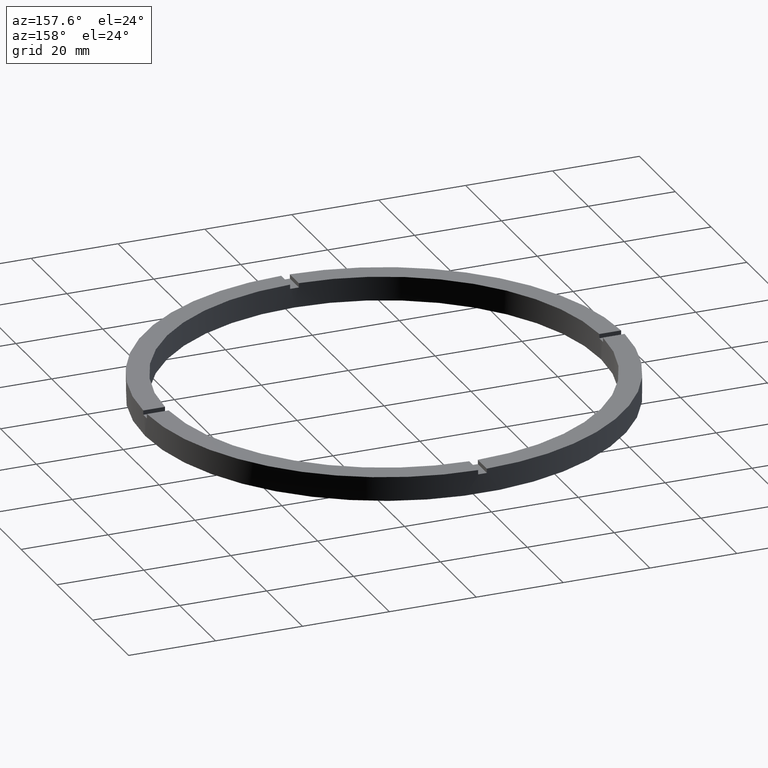
[diagram: clean part render]
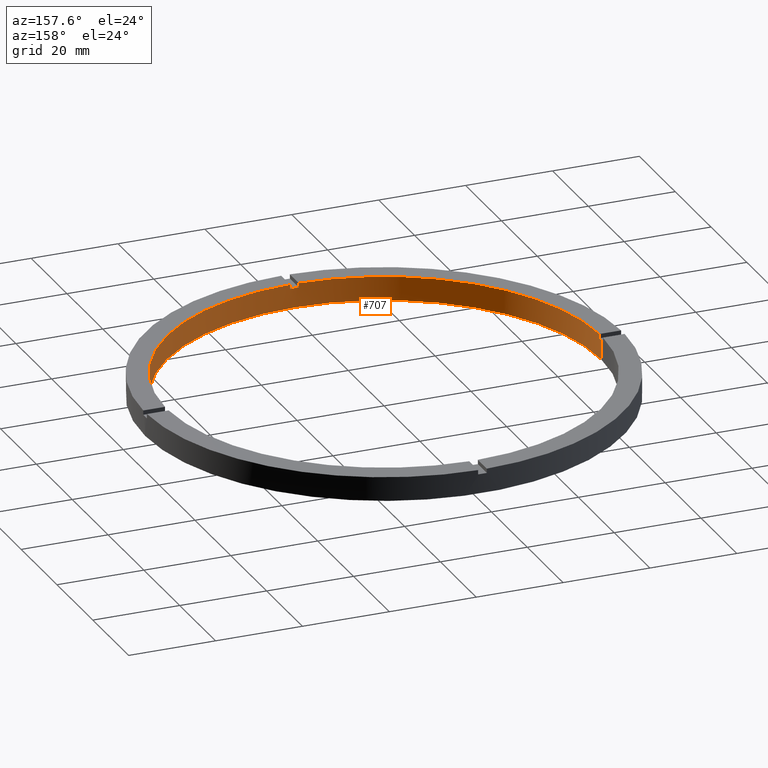
[diagram: same view with one face highlighted and labeled with its STEP entity id]
A machine part, auxiliary view. The second image highlights one B-rep face of the part: STEP entity #707.
In plain terms, the highlighted cylindrical surface (partial cylindrical patch) has radius 50 mm, axis along (-0, -0, -1).
Its self-contained STEP definition (entity closure, byte-faithful):
#19 = CARTESIAN_POINT ( 'NONE',  ( -1.000000000000156097, -49.98999899979995121, 5.500000000000000000 ) ) ;
#20 = CARTESIAN_POINT ( 'NONE',  ( -50.00000000000000000, 0.000000000000000000, 4.500000000000000000 ) ) ;
#43 = CARTESIAN_POINT ( 'NONE',  ( -49.98999899979995121, -1.000000000000031974, 5.500000000000000000 ) ) ;
#48 = EDGE_CURVE ( 'NONE', #632, #404, #199, .T. ) ;
#69 = VERTEX_POINT ( 'NONE', #373 ) ;
#74 = DIRECTION ( 'NONE',  ( 0.000000000000000000, 0.000000000000000000, 1.000000000000000000 ) ) ;
#87 = EDGE_CURVE ( 'NONE', #451, #562, #460, .T. ) ;
#89 = AXIS2_PLACEMENT_3D ( 'NONE', #620, #691, #570 ) ;
#97 = DIRECTION ( 'NONE',  ( 1.000000000000000000, 0.000000000000000000, 0.000000000000000000 ) ) ;
#121 = ORIENTED_EDGE ( 'NONE', *, *, #87, .T. ) ;
#122 = ORIENTED_EDGE ( 'NONE', *, *, #389, .F. ) ;
#123 = VERTEX_POINT ( 'NONE', #780 ) ;
#128 = ORIENTED_EDGE ( 'NONE', *, *, #212, .T. ) ;
#131 = CARTESIAN_POINT ( 'NONE',  ( 0.000000000000000000, 0.000000000000000000, 5.500000000000000000 ) ) ;
#133 = AXIS2_PLACEMENT_3D ( 'NONE', #506, #281, #333 ) ;
#136 = CARTESIAN_POINT ( 'NONE',  ( 49.98999899979995121, -1.000000000000154543, 4.500000000000000000 ) ) ;
#140 = ORIENTED_EDGE ( 'NONE', *, *, #482, .T. ) ;
#152 = VERTEX_POINT ( 'NONE', #279 ) ;
#155 = DIRECTION ( 'NONE',  ( -0.000000000000000000, -0.000000000000000000, -1.000000000000000000 ) ) ;
#160 = CARTESIAN_POINT ( 'NONE',  ( 0.9999999999998439026, -49.98999899979995831, 4.500000000000000000 ) ) ;
#162 = DIRECTION ( 'NONE',  ( 1.000000000000000000, 0.000000000000000000, 0.000000000000000000 ) ) ;
#165 = EDGE_CURVE ( 'NONE', #451, #477, #480, .T. ) ;
#183 = DIRECTION ( 'NONE',  ( -0.000000000000000000, -0.000000000000000000, -1.000000000000000000 ) ) ;
#195 = VERTEX_POINT ( 'NONE', #136 ) ;
#199 = LINE ( 'NONE', #43, #472 ) ;
#207 = ORIENTED_EDGE ( 'NONE', *, *, #592, .F. ) ;
#212 = EDGE_CURVE ( 'NONE', #735, #69, #453, .T. ) ;
#233 = EDGE_CURVE ( 'NONE', #195, #664, #240, .T. ) ;
#240 = CIRCLE ( 'NONE', #693, 50.00000000000000000 ) ;
#248 = CARTESIAN_POINT ( 'NONE',  ( -1.000000000000156097, -49.98999899979995121, 5.500000000000000000 ) ) ;
#249 = CIRCLE ( 'NONE', #619, 50.00000000000000000 ) ;
#253 = CIRCLE ( 'NONE', #656, 50.00000000000000000 ) ;
#255 = VECTOR ( 'NONE', #270, 1000.000000000000000 ) ;
#258 = LINE ( 'NONE', #355, #502 ) ;
#261 = FACE_OUTER_BOUND ( 'NONE', #558, .T. ) ;
#263 = CARTESIAN_POINT ( 'NONE',  ( 0.9999999999998439026, -49.98999899979995831, 5.500000000000000000 ) ) ;
#269 = DIRECTION ( 'NONE',  ( 1.000000000000000000, 0.000000000000000000, 0.000000000000000000 ) ) ;
#270 = DIRECTION ( 'NONE',  ( 0.000000000000000000, 0.000000000000000000, 1.000000000000000000 ) ) ;
#275 = CARTESIAN_POINT ( 'NONE',  ( 0.000000000000000000, 0.000000000000000000, 5.500000000000000000 ) ) ;
#278 = DIRECTION ( 'NONE',  ( -0.000000000000000000, -0.000000000000000000, -1.000000000000000000 ) ) ;
#279 = CARTESIAN_POINT ( 'NONE',  ( 50.00000000000000000, 6.123233995736766085E-15, 0.000000000000000000 ) ) ;
#281 = DIRECTION ( 'NONE',  ( 0.000000000000000000, 0.000000000000000000, 1.000000000000000000 ) ) ;
#282 = CARTESIAN_POINT ( 'NONE',  ( 50.00000000000000000, 6.123233995736766085E-15, 4.500000000000000000 ) ) ;
#299 = DIRECTION ( 'NONE',  ( 0.000000000000000000, 0.000000000000000000, 1.000000000000000000 ) ) ;
#306 = CARTESIAN_POINT ( 'NONE',  ( -1.000000000000156097, -49.98999899979995121, 4.500000000000000000 ) ) ;
#333 = DIRECTION ( 'NONE',  ( 1.000000000000000000, 0.000000000000000000, 0.000000000000000000 ) ) ;
#349 = CARTESIAN_POINT ( 'NONE',  ( -49.98999899979995121, -1.000000000000031974, 5.500000000000000000 ) ) ;
#352 = AXIS2_PLACEMENT_3D ( 'NONE', #783, #299, #162 ) ;
#355 = CARTESIAN_POINT ( 'NONE',  ( -50.00000000000000000, 0.000000000000000000, 5.500000000000000000 ) ) ;
#368 = CARTESIAN_POINT ( 'NONE',  ( -49.98999899979995121, -1.000000000000031974, 4.500000000000000000 ) ) ;
#373 = CARTESIAN_POINT ( 'NONE',  ( 49.98999899979995121, -1.000000000000154543, 5.500000000000000000 ) ) ;
#382 = ORIENTED_EDGE ( 'NONE', *, *, #165, .F. ) ;
#389 = EDGE_CURVE ( 'NONE', #195, #69, #760, .T. ) ;
#401 = ORIENTED_EDGE ( 'NONE', *, *, #48, .F. ) ;
#402 = EDGE_CURVE ( 'NONE', #632, #477, #249, .T. ) ;
#404 = VERTEX_POINT ( 'NONE', #368 ) ;
#432 = EDGE_CURVE ( 'NONE', #669, #123, #258, .T. ) ;
#451 = VERTEX_POINT ( 'NONE', #306 ) ;
#453 = CIRCLE ( 'NONE', #133, 50.00000000000000000 ) ;
#457 = ORIENTED_EDGE ( 'NONE', *, *, #432, .F. ) ;
#460 = CIRCLE ( 'NONE', #89, 50.00000000000000000 ) ;
#465 = DIRECTION ( 'NONE',  ( -0.000000000000000000, -0.000000000000000000, -1.000000000000000000 ) ) ;
#469 = EDGE_CURVE ( 'NONE', #123, #152, #253, .T. ) ;
#472 = VECTOR ( 'NONE', #278, 1000.000000000000000 ) ;
#474 = ORIENTED_EDGE ( 'NONE', *, *, #402, .T. ) ;
#477 = VERTEX_POINT ( 'NONE', #248 ) ;
#478 = CARTESIAN_POINT ( 'NONE',  ( 50.00000000000000000, 6.123233995736766085E-15, 5.500000000000000000 ) ) ;
#480 = LINE ( 'NONE', #19, #734 ) ;
#482 = EDGE_CURVE ( 'NONE', #664, #152, #488, .T. ) ;
#488 = LINE ( 'NONE', #478, #764 ) ;
#492 = VECTOR ( 'NONE', #465, 1000.000000000000000 ) ;
#502 = VECTOR ( 'NONE', #596, 1000.000000000000000 ) ;
#506 = CARTESIAN_POINT ( 'NONE',  ( 0.000000000000000000, 0.000000000000000000, 5.500000000000000000 ) ) ;
#508 = CARTESIAN_POINT ( 'NONE',  ( 0.9999999999998439026, -49.98999899979995831, 5.500000000000000000 ) ) ;
#534 = EDGE_CURVE ( 'NONE', #669, #404, #747, .T. ) ;
#540 = CARTESIAN_POINT ( 'NONE',  ( 0.000000000000000000, 0.000000000000000000, 0.000000000000000000 ) ) ;
#558 = EDGE_LOOP ( 'NONE', ( #629, #140, #641, #457, #710, #401, #474, #382, #121, #207, #128, #122 ) ) ;
#562 = VERTEX_POINT ( 'NONE', #160 ) ;
#570 = DIRECTION ( 'NONE',  ( 1.000000000000000000, 0.000000000000000000, 0.000000000000000000 ) ) ;
#592 = EDGE_CURVE ( 'NONE', #735, #562, #753, .T. ) ;
#596 = DIRECTION ( 'NONE',  ( -0.000000000000000000, -0.000000000000000000, -1.000000000000000000 ) ) ;
#603 = CARTESIAN_POINT ( 'NONE',  ( 0.000000000000000000, 0.000000000000000000, 4.500000000000000000 ) ) ;
#619 = AXIS2_PLACEMENT_3D ( 'NONE', #131, #674, #761 ) ;
#620 = CARTESIAN_POINT ( 'NONE',  ( 0.000000000000000000, 0.000000000000000000, 4.500000000000000000 ) ) ;
#625 = DIRECTION ( 'NONE',  ( 0.000000000000000000, 0.000000000000000000, 1.000000000000000000 ) ) ;
#629 = ORIENTED_EDGE ( 'NONE', *, *, #233, .T. ) ;
#632 = VERTEX_POINT ( 'NONE', #349 ) ;
#641 = ORIENTED_EDGE ( 'NONE', *, *, #469, .F. ) ;
#656 = AXIS2_PLACEMENT_3D ( 'NONE', #540, #625, #97 ) ;
#664 = VERTEX_POINT ( 'NONE', #282 ) ;
#669 = VERTEX_POINT ( 'NONE', #20 ) ;
#674 = DIRECTION ( 'NONE',  ( 0.000000000000000000, 0.000000000000000000, 1.000000000000000000 ) ) ;
#691 = DIRECTION ( 'NONE',  ( -0.000000000000000000, 0.000000000000000000, 1.000000000000000000 ) ) ;
#693 = AXIS2_PLACEMENT_3D ( 'NONE', #603, #731, #269 ) ;
#707 = ADVANCED_FACE ( 'NONE', ( #261 ), #781, .F. ) ;
#710 = ORIENTED_EDGE ( 'NONE', *, *, #534, .T. ) ;
#731 = DIRECTION ( 'NONE',  ( 0.000000000000000000, 0.000000000000000000, 1.000000000000000000 ) ) ;
#734 = VECTOR ( 'NONE', #74, 1000.000000000000000 ) ;
#735 = VERTEX_POINT ( 'NONE', #508 ) ;
#746 = CARTESIAN_POINT ( 'NONE',  ( 49.98999899979995121, -1.000000000000154543, 5.500000000000000000 ) ) ;
#747 = CIRCLE ( 'NONE', #352, 50.00000000000000000 ) ;
#750 = AXIS2_PLACEMENT_3D ( 'NONE', #275, #183, #752 ) ;
#752 = DIRECTION ( 'NONE',  ( -1.000000000000000000, 0.000000000000000000, 0.000000000000000000 ) ) ;
#753 = LINE ( 'NONE', #263, #492 ) ;
#760 = LINE ( 'NONE', #746, #255 ) ;
#761 = DIRECTION ( 'NONE',  ( 1.000000000000000000, 0.000000000000000000, 0.000000000000000000 ) ) ;
#764 = VECTOR ( 'NONE', #155, 1000.000000000000000 ) ;
#780 = CARTESIAN_POINT ( 'NONE',  ( -50.00000000000000000, 0.000000000000000000, 0.000000000000000000 ) ) ;
#781 = CYLINDRICAL_SURFACE ( 'NONE', #750, 50.00000000000000000 ) ;
#783 = CARTESIAN_POINT ( 'NONE',  ( 0.000000000000000000, 0.000000000000000000, 4.500000000000000000 ) ) ;